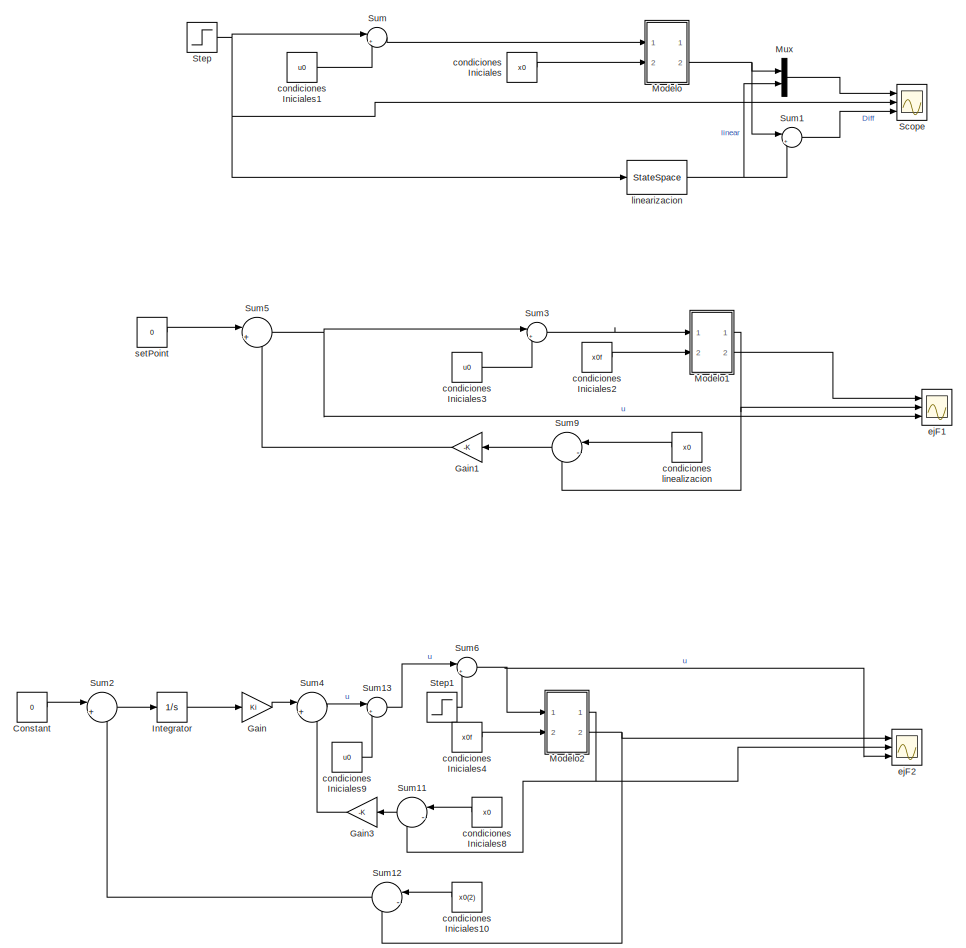
[diagram: root canvas - part 1/6, top center region]
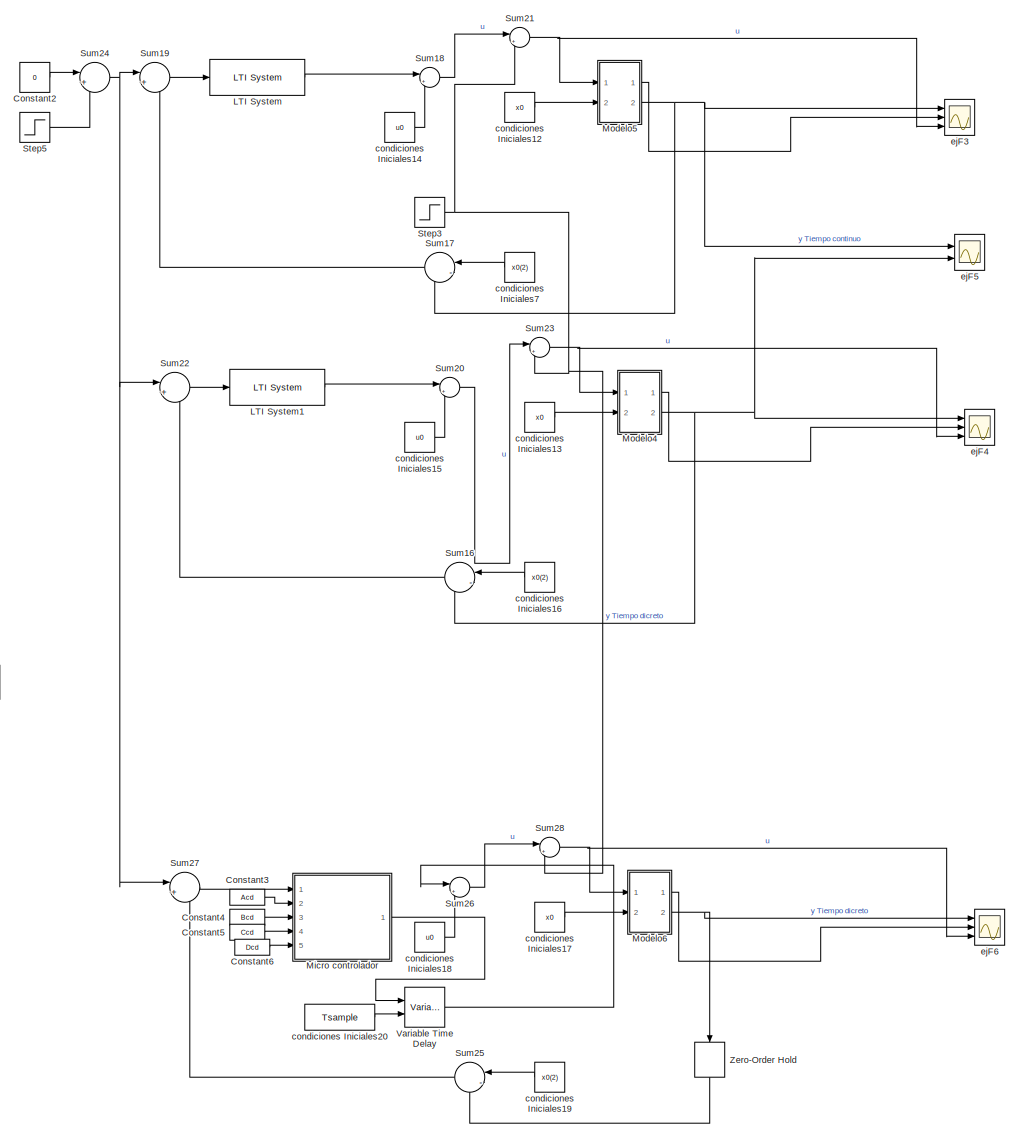
[diagram: root canvas - part 2/6, middle right region]
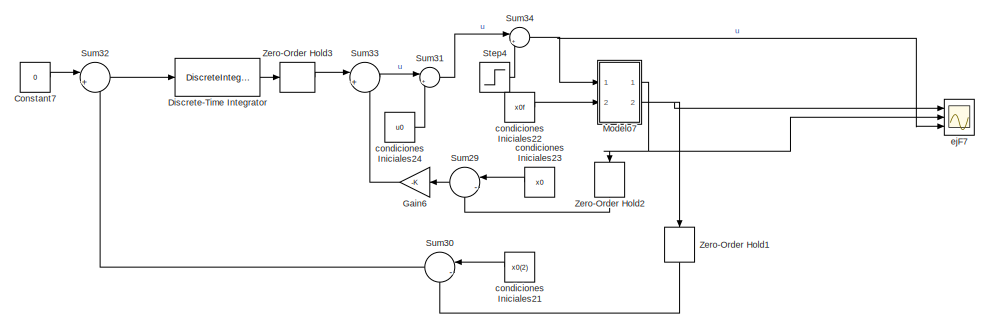
[diagram: root canvas - part 3/6, middle left region]
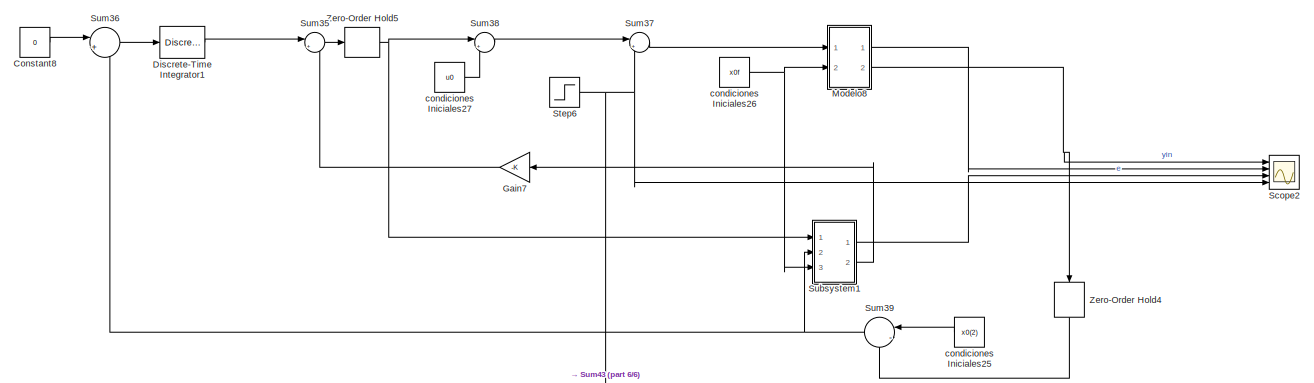
[diagram: root canvas - part 4/6, middle left region]
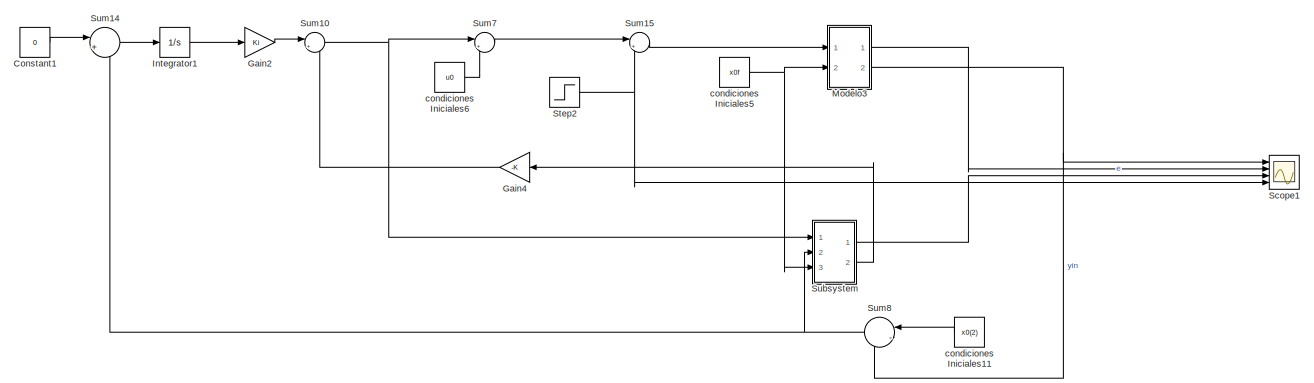
[diagram: root canvas - part 5/6, central region]
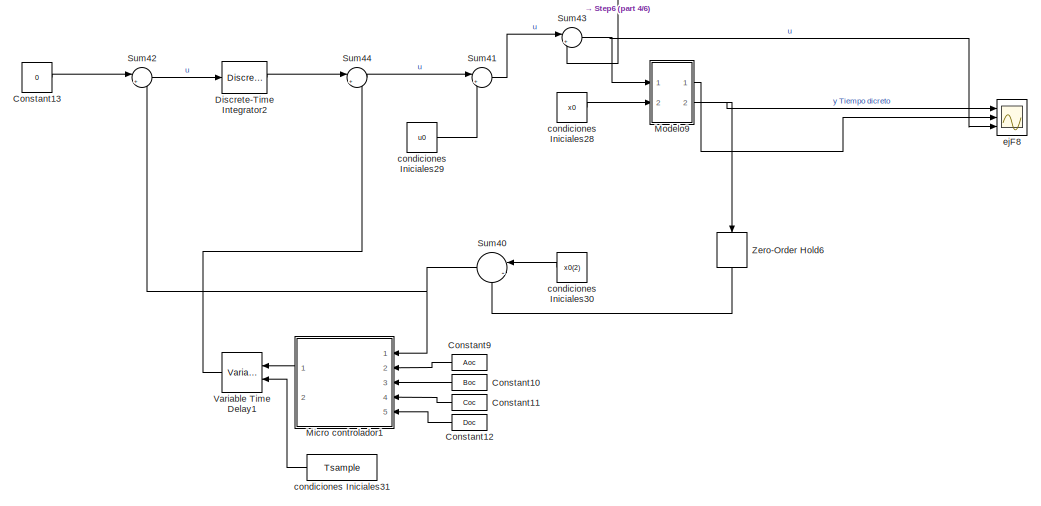
[diagram: root canvas - part 6/6, bottom left region]
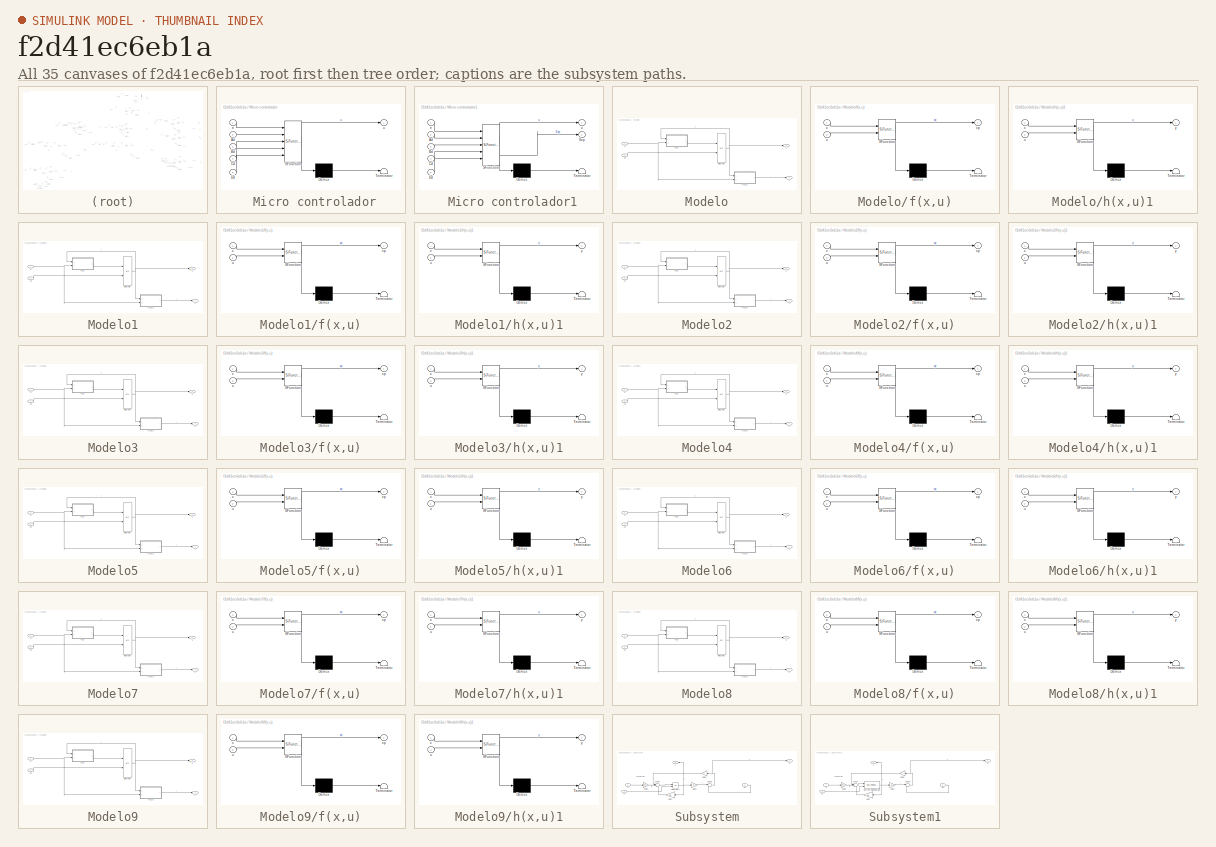
[diagram: thumbnail index - all 35 canvases of the model, root first then tree order]
MODEL slx_f2d41ec6eb1a
KIND model
CONFIG AbsTol = auto
CONFIG EnableMultiTasking = off
CONFIG FixedStep = 10e-6
CONFIG MaxStep = auto
CONFIG MinStep = auto
CONFIG RelTol = 1e-3
CONFIG SampleTimeConstraint = Unconstrained
CONFIG Solver = ode4
CONFIG SolverName = ode4
CONFIG StartTime = 0.0
CONFIG StopTime = 5
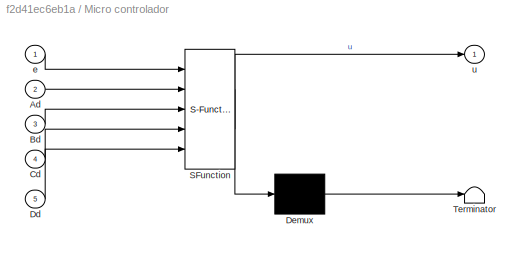
BLOCK [SubSystem]  Micro controlador
  Commented = on
  ErrorFcn = Stateflow.Translate.translate
  PermitHierarchicalResolution = ExplicitOnly
  Ports = [5, 1]
  RequestExecContextInheritance = off
  SFBlockType = MATLAB Function
  SystemSampleTime = Tsample
  TreatAsAtomicUnit = on
BLOCK [Demux]  Micro controlador/ Demux 
  Outputs = 1
  Ports = [1, 1]
BLOCK [S-Function]  Micro controlador/ SFunction 
  EnableBusSupport = on
  FunctionName = sf_sfun
  PortCounts = [5 2]
  Ports = [5, 2]
  SFcnIsStateOwnerBlock = off
  SFunctionDeploymentMode = off
  Tag = Stateflow S-Function 13
BLOCK [Terminator]  Micro controlador/ Terminator 
BLOCK [Inport]  Micro controlador/Ad
  Port = 2
BLOCK [Inport]  Micro controlador/Bd
  Port = 3
BLOCK [Inport]  Micro controlador/Cd
  Port = 4
BLOCK [Inport]  Micro controlador/Dd
  Port = 5
BLOCK [Inport]  Micro controlador/e
BLOCK [Outport]  Micro controlador/u
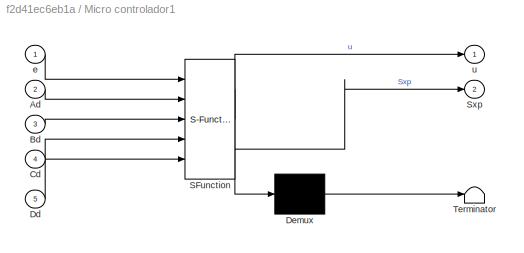
BLOCK [SubSystem]  Micro controlador1
  ErrorFcn = Stateflow.Translate.translate
  PermitHierarchicalResolution = ExplicitOnly
  Ports = [5, 2]
  RequestExecContextInheritance = off
  SFBlockType = MATLAB Function
  SystemSampleTime = Tsample
  TreatAsAtomicUnit = on
BLOCK [Demux]  Micro controlador1/ Demux 
  Outputs = 1
  Ports = [1, 1]
BLOCK [S-Function]  Micro controlador1/ SFunction 
  EnableBusSupport = on
  FunctionName = sf_sfun
  PortCounts = [5 3]
  Ports = [5, 3]
  SFcnIsStateOwnerBlock = off
  SFunctionDeploymentMode = off
  Tag = Stateflow S-Function 20
BLOCK [Terminator]  Micro controlador1/ Terminator 
BLOCK [Inport]  Micro controlador1/Ad
  Port = 2
BLOCK [Inport]  Micro controlador1/Bd
  Port = 3
BLOCK [Inport]  Micro controlador1/Cd
  Port = 4
BLOCK [Inport]  Micro controlador1/Dd
  Port = 5
BLOCK [Outport]  Micro controlador1/Sxp
  Port = 2
BLOCK [Inport]  Micro controlador1/e
BLOCK [Outport]  Micro controlador1/u
BLOCK [Constant] Constant
  Commented = on
  Value = 0
BLOCK [Constant] Constant1
  Commented = on
  Value = 0
BLOCK [Constant] Constant10
  Value = Boc
BLOCK [Constant] Constant11
  Value = Coc
BLOCK [Constant] Constant12
  Value = Doc
BLOCK [Constant] Constant13
  Value = 0
BLOCK [Constant] Constant2
  Commented = on
  Value = 0
BLOCK [Constant] Constant3
  Commented = on
  Value = Acd
BLOCK [Constant] Constant4
  Commented = on
  Value = Bcd
BLOCK [Constant] Constant5
  Commented = on
  Value = Ccd
BLOCK [Constant] Constant6
  Commented = on
  Value = Dcd
BLOCK [Constant] Constant7
  Commented = on
  Value = 0
BLOCK [Constant] Constant8
  Value = 0
BLOCK [Constant] Constant9
  Value = Aoc
BLOCK [DiscreteIntegrator] Discrete-Time Integrator
  Commented = on
  ICPrevOutput = DiscIntNeverNeededParam
  ICPrevScaledInput = DiscIntNeverNeededParam
  InitialConditionSetting = Auto
  IntegratorMethod = Integration: Trapezoidal
  Ports = [1, 1]
  SampleTime = Tsample
  gainval = Ki
BLOCK [DiscreteIntegrator] Discrete-Time Integrator1
  ICPrevOutput = DiscIntNeverNeededParam
  ICPrevScaledInput = DiscIntNeverNeededParam
  InitialConditionSetting = Auto
  IntegratorMethod = Integration: Trapezoidal
  Ports = [1, 1]
  SampleTime = Tsample
  gainval = Ki
BLOCK [DiscreteIntegrator] Discrete-Time Integrator2
  ICPrevOutput = DiscIntNeverNeededParam
  ICPrevScaledInput = DiscIntNeverNeededParam
  InitialConditionSetting = Auto
  IntegratorMethod = Integration: Trapezoidal
  Ports = [1, 1]
  SampleTime = Tsample
  gainval = Ki
BLOCK [Gain] Gain
  Commented = on
  Gain = Ki
BLOCK [Gain] Gain1
  Commented = on
  Gain = -K
  Multiplication = Matrix(K*u)
BLOCK [Gain] Gain2
  Commented = on
  Gain = Ki
  Multiplication = Matrix(K*u)
BLOCK [Gain] Gain3
  Commented = on
  Gain = -K
  Multiplication = Matrix(K*u)
BLOCK [Gain] Gain4
  Commented = on
  Gain = -K
  Multiplication = Matrix(K*u)
BLOCK [Gain] Gain6
  Commented = on
  Gain = -K
  Multiplication = Matrix(K*u)
BLOCK [Gain] Gain7
  Gain = -K
  Multiplication = Matrix(K*u)
BLOCK [Integrator] Integrator
  Commented = on
  Ports = [1, 1]
BLOCK [Integrator] Integrator1
  Commented = on
  Ports = [1, 1]
BLOCK [Reference] LTI System  REF=cstblocks/LTI System
  Commented = on
  Ports = [1, 1]
  SourceBlock = cstblocks/LTI System
  SourceProductBaseCode = CT
  SourceType = LTI Block
BLOCK [Reference] LTI System1  REF=cstblocks/LTI System
  Commented = on
  Ports = [1, 1]
  SourceBlock = cstblocks/LTI System
  SourceProductBaseCode = CT
  SourceType = LTI Block
BLOCK [SubSystem] Modelo
  Commented = on
  Ports = [2, 2]
  RequestExecContextInheritance = off
BLOCK [Integrator] Modelo/Integrator
  InitialConditionSource = external
  Ports = [2, 1]
BLOCK [SubSystem] Modelo/f(x,u)
  ErrorFcn = Stateflow.Translate.translate
  PermitHierarchicalResolution = ExplicitOnly
  Ports = [2, 1]
  RequestExecContextInheritance = off
  SFBlockType = MATLAB Function
  TreatAsAtomicUnit = on
BLOCK [Demux] Modelo/f(x,u)/ Demux 
  Outputs = 1
  Ports = [1, 1]
BLOCK [S-Function] Modelo/f(x,u)/ SFunction 
  EnableBusSupport = on
  FunctionName = sf_sfun
  PortCounts = [2 2]
  Ports = [2, 2]
  SFcnIsStateOwnerBlock = off
  SFunctionDeploymentMode = off
  Tag = Stateflow S-Function 2
BLOCK [Terminator] Modelo/f(x,u)/ Terminator 
BLOCK [Inport] Modelo/f(x,u)/u
  Port = 2
BLOCK [Inport] Modelo/f(x,u)/x
BLOCK [Outport] Modelo/f(x,u)/xp
  VectorParamsAs1DForOutWhenUnconnected = off
BLOCK [SubSystem] Modelo/h(x,u)1
  ErrorFcn = Stateflow.Translate.translate
  PermitHierarchicalResolution = ExplicitOnly
  Ports = [2, 1]
  RequestExecContextInheritance = off
  SFBlockType = MATLAB Function
  TreatAsAtomicUnit = on
BLOCK [Demux] Modelo/h(x,u)1/ Demux 
  Outputs = 1
  Ports = [1, 1]
BLOCK [S-Function] Modelo/h(x,u)1/ SFunction 
  EnableBusSupport = on
  FunctionName = sf_sfun
  PortCounts = [2 2]
  Ports = [2, 2]
  SFcnIsStateOwnerBlock = off
  SFunctionDeploymentMode = off
  Tag = Stateflow S-Function 1
BLOCK [Terminator] Modelo/h(x,u)1/ Terminator 
BLOCK [Inport] Modelo/h(x,u)1/u
  Port = 2
BLOCK [Inport] Modelo/h(x,u)1/x
BLOCK [Outport] Modelo/h(x,u)1/y
  VectorParamsAs1DForOutWhenUnconnected = off
BLOCK [Inport] Modelo/u
BLOCK [Outport] Modelo/x
BLOCK [Inport] Modelo/x0
  Port = 2
BLOCK [Outport] Modelo/y
  Port = 2
BLOCK [SubSystem] Modelo1
  Commented = on
  Ports = [2, 2]
  RequestExecContextInheritance = off
BLOCK [Integrator] Modelo1/Integrator
  InitialConditionSource = external
  Ports = [2, 1]
BLOCK [SubSystem] Modelo1/f(x,u)
  ErrorFcn = Stateflow.Translate.translate
  PermitHierarchicalResolution = ExplicitOnly
  Ports = [2, 1]
  RequestExecContextInheritance = off
  SFBlockType = MATLAB Function
  TreatAsAtomicUnit = on
BLOCK [Demux] Modelo1/f(x,u)/ Demux 
  Outputs = 1
  Ports = [1, 1]
BLOCK [S-Function] Modelo1/f(x,u)/ SFunction 
  EnableBusSupport = on
  FunctionName = sf_sfun
  PortCounts = [2 2]
  Ports = [2, 2]
  SFcnIsStateOwnerBlock = off
  SFunctionDeploymentMode = off
  Tag = Stateflow S-Function 3
BLOCK [Terminator] Modelo1/f(x,u)/ Terminator 
BLOCK [Inport] Modelo1/f(x,u)/u
  Port = 2
BLOCK [Inport] Modelo1/f(x,u)/x
BLOCK [Outport] Modelo1/f(x,u)/xp
  VectorParamsAs1DForOutWhenUnconnected = off
BLOCK [SubSystem] Modelo1/h(x,u)1
  ErrorFcn = Stateflow.Translate.translate
  PermitHierarchicalResolution = ExplicitOnly
  Ports = [2, 1]
  RequestExecContextInheritance = off
  SFBlockType = MATLAB Function
  TreatAsAtomicUnit = on
BLOCK [Demux] Modelo1/h(x,u)1/ Demux 
  Outputs = 1
  Ports = [1, 1]
BLOCK [S-Function] Modelo1/h(x,u)1/ SFunction 
  EnableBusSupport = on
  FunctionName = sf_sfun
  PortCounts = [2 2]
  Ports = [2, 2]
  SFcnIsStateOwnerBlock = off
  SFunctionDeploymentMode = off
  Tag = Stateflow S-Function 4
BLOCK [Terminator] Modelo1/h(x,u)1/ Terminator 
BLOCK [Inport] Modelo1/h(x,u)1/u
  Port = 2
BLOCK [Inport] Modelo1/h(x,u)1/x
BLOCK [Outport] Modelo1/h(x,u)1/y
  VectorParamsAs1DForOutWhenUnconnected = off
BLOCK [Inport] Modelo1/u
BLOCK [Outport] Modelo1/x
BLOCK [Inport] Modelo1/x0
  Port = 2
BLOCK [Outport] Modelo1/y
  Port = 2
BLOCK [SubSystem] Modelo2
  Commented = on
  Ports = [2, 2]
  RequestExecContextInheritance = off
BLOCK [Integrator] Modelo2/Integrator
  InitialConditionSource = external
  Ports = [2, 1]
BLOCK [SubSystem] Modelo2/f(x,u)
  ErrorFcn = Stateflow.Translate.translate
  PermitHierarchicalResolution = ExplicitOnly
  Ports = [2, 1]
  RequestExecContextInheritance = off
  SFBlockType = MATLAB Function
  TreatAsAtomicUnit = on
BLOCK [Demux] Modelo2/f(x,u)/ Demux 
  Outputs = 1
  Ports = [1, 1]
BLOCK [S-Function] Modelo2/f(x,u)/ SFunction 
  EnableBusSupport = on
  FunctionName = sf_sfun
  PortCounts = [2 2]
  Ports = [2, 2]
  SFcnIsStateOwnerBlock = off
  SFunctionDeploymentMode = off
  Tag = Stateflow S-Function 5
BLOCK [Terminator] Modelo2/f(x,u)/ Terminator 
BLOCK [Inport] Modelo2/f(x,u)/u
  Port = 2
BLOCK [Inport] Modelo2/f(x,u)/x
BLOCK [Outport] Modelo2/f(x,u)/xp
  VectorParamsAs1DForOutWhenUnconnected = off
BLOCK [SubSystem] Modelo2/h(x,u)1
  ErrorFcn = Stateflow.Translate.translate
  PermitHierarchicalResolution = ExplicitOnly
  Ports = [2, 1]
  RequestExecContextInheritance = off
  SFBlockType = MATLAB Function
  TreatAsAtomicUnit = on
BLOCK [Demux] Modelo2/h(x,u)1/ Demux 
  Outputs = 1
  Ports = [1, 1]
BLOCK [S-Function] Modelo2/h(x,u)1/ SFunction 
  EnableBusSupport = on
  FunctionName = sf_sfun
  PortCounts = [2 2]
  Ports = [2, 2]
  SFcnIsStateOwnerBlock = off
  SFunctionDeploymentMode = off
  Tag = Stateflow S-Function 6
BLOCK [Terminator] Modelo2/h(x,u)1/ Terminator 
BLOCK [Inport] Modelo2/h(x,u)1/u
  Port = 2
BLOCK [Inport] Modelo2/h(x,u)1/x
BLOCK [Outport] Modelo2/h(x,u)1/y
  VectorParamsAs1DForOutWhenUnconnected = off
BLOCK [Inport] Modelo2/u
BLOCK [Outport] Modelo2/x
BLOCK [Inport] Modelo2/x0
  Port = 2
BLOCK [Outport] Modelo2/y
  Port = 2
BLOCK [SubSystem] Modelo3
  Commented = on
  Ports = [2, 2]
  RequestExecContextInheritance = off
BLOCK [Integrator] Modelo3/Integrator
  InitialConditionSource = external
  Ports = [2, 1]
BLOCK [SubSystem] Modelo3/f(x,u)
  ErrorFcn = Stateflow.Translate.translate
  PermitHierarchicalResolution = ExplicitOnly
  Ports = [2, 1]
  RequestExecContextInheritance = off
  SFBlockType = MATLAB Function
  TreatAsAtomicUnit = on
BLOCK [Demux] Modelo3/f(x,u)/ Demux 
  Outputs = 1
  Ports = [1, 1]
BLOCK [S-Function] Modelo3/f(x,u)/ SFunction 
  EnableBusSupport = on
  FunctionName = sf_sfun
  PortCounts = [2 2]
  Ports = [2, 2]
  SFcnIsStateOwnerBlock = off
  SFunctionDeploymentMode = off
  Tag = Stateflow S-Function 7
BLOCK [Terminator] Modelo3/f(x,u)/ Terminator 
BLOCK [Inport] Modelo3/f(x,u)/u
  Port = 2
BLOCK [Inport] Modelo3/f(x,u)/x
BLOCK [Outport] Modelo3/f(x,u)/xp
  VectorParamsAs1DForOutWhenUnconnected = off
BLOCK [SubSystem] Modelo3/h(x,u)1
  ErrorFcn = Stateflow.Translate.translate
  PermitHierarchicalResolution = ExplicitOnly
  Ports = [2, 1]
  RequestExecContextInheritance = off
  SFBlockType = MATLAB Function
  TreatAsAtomicUnit = on
BLOCK [Demux] Modelo3/h(x,u)1/ Demux 
  Outputs = 1
  Ports = [1, 1]
BLOCK [S-Function] Modelo3/h(x,u)1/ SFunction 
  EnableBusSupport = on
  FunctionName = sf_sfun
  PortCounts = [2 2]
  Ports = [2, 2]
  SFcnIsStateOwnerBlock = off
  SFunctionDeploymentMode = off
  Tag = Stateflow S-Function 8
BLOCK [Terminator] Modelo3/h(x,u)1/ Terminator 
BLOCK [Inport] Modelo3/h(x,u)1/u
  Port = 2
BLOCK [Inport] Modelo3/h(x,u)1/x
BLOCK [Outport] Modelo3/h(x,u)1/y
  VectorParamsAs1DForOutWhenUnconnected = off
BLOCK [Inport] Modelo3/u
BLOCK [Outport] Modelo3/x
BLOCK [Inport] Modelo3/x0
  Port = 2
BLOCK [Outport] Modelo3/y
  Port = 2
BLOCK [SubSystem] Modelo4
  Commented = on
  Ports = [2, 2]
  RequestExecContextInheritance = off
BLOCK [Integrator] Modelo4/Integrator
  InitialConditionSource = external
  Ports = [2, 1]
BLOCK [SubSystem] Modelo4/f(x,u)
  ErrorFcn = Stateflow.Translate.translate
  PermitHierarchicalResolution = ExplicitOnly
  Ports = [2, 1]
  RequestExecContextInheritance = off
  SFBlockType = MATLAB Function
  TreatAsAtomicUnit = on
BLOCK [Demux] Modelo4/f(x,u)/ Demux 
  Outputs = 1
  Ports = [1, 1]
BLOCK [S-Function] Modelo4/f(x,u)/ SFunction 
  EnableBusSupport = on
  FunctionName = sf_sfun
  PortCounts = [2 2]
  Ports = [2, 2]
  SFcnIsStateOwnerBlock = off
  SFunctionDeploymentMode = off
  Tag = Stateflow S-Function 9
BLOCK [Terminator] Modelo4/f(x,u)/ Terminator 
BLOCK [Inport] Modelo4/f(x,u)/u
  Port = 2
BLOCK [Inport] Modelo4/f(x,u)/x
BLOCK [Outport] Modelo4/f(x,u)/xp
  VectorParamsAs1DForOutWhenUnconnected = off
BLOCK [SubSystem] Modelo4/h(x,u)1
  ErrorFcn = Stateflow.Translate.translate
  PermitHierarchicalResolution = ExplicitOnly
  Ports = [2, 1]
  RequestExecContextInheritance = off
  SFBlockType = MATLAB Function
  TreatAsAtomicUnit = on
BLOCK [Demux] Modelo4/h(x,u)1/ Demux 
  Outputs = 1
  Ports = [1, 1]
BLOCK [S-Function] Modelo4/h(x,u)1/ SFunction 
  EnableBusSupport = on
  FunctionName = sf_sfun
  PortCounts = [2 2]
  Ports = [2, 2]
  SFcnIsStateOwnerBlock = off
  SFunctionDeploymentMode = off
  Tag = Stateflow S-Function 10
BLOCK [Terminator] Modelo4/h(x,u)1/ Terminator 
BLOCK [Inport] Modelo4/h(x,u)1/u
  Port = 2
BLOCK [Inport] Modelo4/h(x,u)1/x
BLOCK [Outport] Modelo4/h(x,u)1/y
  VectorParamsAs1DForOutWhenUnconnected = off
BLOCK [Inport] Modelo4/u
BLOCK [Outport] Modelo4/x
BLOCK [Inport] Modelo4/x0
  Port = 2
BLOCK [Outport] Modelo4/y
  Port = 2
BLOCK [SubSystem] Modelo5
  Commented = on
  Ports = [2, 2]
  RequestExecContextInheritance = off
BLOCK [Integrator] Modelo5/Integrator
  InitialConditionSource = external
  Ports = [2, 1]
BLOCK [SubSystem] Modelo5/f(x,u)
  ErrorFcn = Stateflow.Translate.translate
  PermitHierarchicalResolution = ExplicitOnly
  Ports = [2, 1]
  RequestExecContextInheritance = off
  SFBlockType = MATLAB Function
  TreatAsAtomicUnit = on
BLOCK [Demux] Modelo5/f(x,u)/ Demux 
  Outputs = 1
  Ports = [1, 1]
BLOCK [S-Function] Modelo5/f(x,u)/ SFunction 
  EnableBusSupport = on
  FunctionName = sf_sfun
  PortCounts = [2 2]
  Ports = [2, 2]
  SFcnIsStateOwnerBlock = off
  SFunctionDeploymentMode = off
  Tag = Stateflow S-Function 11
BLOCK [Terminator] Modelo5/f(x,u)/ Terminator 
BLOCK [Inport] Modelo5/f(x,u)/u
  Port = 2
BLOCK [Inport] Modelo5/f(x,u)/x
BLOCK [Outport] Modelo5/f(x,u)/xp
  VectorParamsAs1DForOutWhenUnconnected = off
BLOCK [SubSystem] Modelo5/h(x,u)1
  ErrorFcn = Stateflow.Translate.translate
  PermitHierarchicalResolution = ExplicitOnly
  Ports = [2, 1]
  RequestExecContextInheritance = off
  SFBlockType = MATLAB Function
  TreatAsAtomicUnit = on
BLOCK [Demux] Modelo5/h(x,u)1/ Demux 
  Outputs = 1
  Ports = [1, 1]
BLOCK [S-Function] Modelo5/h(x,u)1/ SFunction 
  EnableBusSupport = on
  FunctionName = sf_sfun
  PortCounts = [2 2]
  Ports = [2, 2]
  SFcnIsStateOwnerBlock = off
  SFunctionDeploymentMode = off
  Tag = Stateflow S-Function 12
BLOCK [Terminator] Modelo5/h(x,u)1/ Terminator 
BLOCK [Inport] Modelo5/h(x,u)1/u
  Port = 2
BLOCK [Inport] Modelo5/h(x,u)1/x
BLOCK [Outport] Modelo5/h(x,u)1/y
  VectorParamsAs1DForOutWhenUnconnected = off
BLOCK [Inport] Modelo5/u
BLOCK [Outport] Modelo5/x
BLOCK [Inport] Modelo5/x0
  Port = 2
BLOCK [Outport] Modelo5/y
  Port = 2
BLOCK [SubSystem] Modelo6
  Commented = on
  Ports = [2, 2]
  RequestExecContextInheritance = off
BLOCK [Integrator] Modelo6/Integrator
  InitialConditionSource = external
  Ports = [2, 1]
BLOCK [SubSystem] Modelo6/f(x,u)
  ErrorFcn = Stateflow.Translate.translate
  PermitHierarchicalResolution = ExplicitOnly
  Ports = [2, 1]
  RequestExecContextInheritance = off
  SFBlockType = MATLAB Function
  TreatAsAtomicUnit = on
BLOCK [Demux] Modelo6/f(x,u)/ Demux 
  Outputs = 1
  Ports = [1, 1]
BLOCK [S-Function] Modelo6/f(x,u)/ SFunction 
  EnableBusSupport = on
  FunctionName = sf_sfun
  PortCounts = [2 2]
  Ports = [2, 2]
  SFcnIsStateOwnerBlock = off
  SFunctionDeploymentMode = off
  Tag = Stateflow S-Function 14
BLOCK [Terminator] Modelo6/f(x,u)/ Terminator 
BLOCK [Inport] Modelo6/f(x,u)/u
  Port = 2
BLOCK [Inport] Modelo6/f(x,u)/x
BLOCK [Outport] Modelo6/f(x,u)/xp
  VectorParamsAs1DForOutWhenUnconnected = off
BLOCK [SubSystem] Modelo6/h(x,u)1
  ErrorFcn = Stateflow.Translate.translate
  PermitHierarchicalResolution = ExplicitOnly
  Ports = [2, 1]
  RequestExecContextInheritance = off
  SFBlockType = MATLAB Function
  TreatAsAtomicUnit = on
BLOCK [Demux] Modelo6/h(x,u)1/ Demux 
  Outputs = 1
  Ports = [1, 1]
BLOCK [S-Function] Modelo6/h(x,u)1/ SFunction 
  EnableBusSupport = on
  FunctionName = sf_sfun
  PortCounts = [2 2]
  Ports = [2, 2]
  SFcnIsStateOwnerBlock = off
  SFunctionDeploymentMode = off
  Tag = Stateflow S-Function 15
BLOCK [Terminator] Modelo6/h(x,u)1/ Terminator 
BLOCK [Inport] Modelo6/h(x,u)1/u
  Port = 2
BLOCK [Inport] Modelo6/h(x,u)1/x
BLOCK [Outport] Modelo6/h(x,u)1/y
  VectorParamsAs1DForOutWhenUnconnected = off
BLOCK [Inport] Modelo6/u
BLOCK [Outport] Modelo6/x
BLOCK [Inport] Modelo6/x0
  Port = 2
BLOCK [Outport] Modelo6/y
  Port = 2
BLOCK [SubSystem] Modelo7
  Commented = on
  Ports = [2, 2]
  RequestExecContextInheritance = off
BLOCK [Integrator] Modelo7/Integrator
  InitialConditionSource = external
  Ports = [2, 1]
BLOCK [SubSystem] Modelo7/f(x,u)
  ErrorFcn = Stateflow.Translate.translate
  PermitHierarchicalResolution = ExplicitOnly
  Ports = [2, 1]
  RequestExecContextInheritance = off
  SFBlockType = MATLAB Function
  TreatAsAtomicUnit = on
BLOCK [Demux] Modelo7/f(x,u)/ Demux 
  Outputs = 1
  Ports = [1, 1]
BLOCK [S-Function] Modelo7/f(x,u)/ SFunction 
  EnableBusSupport = on
  FunctionName = sf_sfun
  PortCounts = [2 2]
  Ports = [2, 2]
  SFcnIsStateOwnerBlock = off
  SFunctionDeploymentMode = off
  Tag = Stateflow S-Function 16
BLOCK [Terminator] Modelo7/f(x,u)/ Terminator 
BLOCK [Inport] Modelo7/f(x,u)/u
  Port = 2
BLOCK [Inport] Modelo7/f(x,u)/x
BLOCK [Outport] Modelo7/f(x,u)/xp
  VectorParamsAs1DForOutWhenUnconnected = off
BLOCK [SubSystem] Modelo7/h(x,u)1
  ErrorFcn = Stateflow.Translate.translate
  PermitHierarchicalResolution = ExplicitOnly
  Ports = [2, 1]
  RequestExecContextInheritance = off
  SFBlockType = MATLAB Function
  TreatAsAtomicUnit = on
BLOCK [Demux] Modelo7/h(x,u)1/ Demux 
  Outputs = 1
  Ports = [1, 1]
BLOCK [S-Function] Modelo7/h(x,u)1/ SFunction 
  EnableBusSupport = on
  FunctionName = sf_sfun
  PortCounts = [2 2]
  Ports = [2, 2]
  SFcnIsStateOwnerBlock = off
  SFunctionDeploymentMode = off
  Tag = Stateflow S-Function 17
BLOCK [Terminator] Modelo7/h(x,u)1/ Terminator 
BLOCK [Inport] Modelo7/h(x,u)1/u
  Port = 2
BLOCK [Inport] Modelo7/h(x,u)1/x
BLOCK [Outport] Modelo7/h(x,u)1/y
  VectorParamsAs1DForOutWhenUnconnected = off
BLOCK [Inport] Modelo7/u
BLOCK [Outport] Modelo7/x
BLOCK [Inport] Modelo7/x0
  Port = 2
BLOCK [Outport] Modelo7/y
  Port = 2
BLOCK [SubSystem] Modelo8
  Ports = [2, 2]
  RequestExecContextInheritance = off
BLOCK [Integrator] Modelo8/Integrator
  InitialConditionSource = external
  Ports = [2, 1]
BLOCK [SubSystem] Modelo8/f(x,u)
  ErrorFcn = Stateflow.Translate.translate
  PermitHierarchicalResolution = ExplicitOnly
  Ports = [2, 1]
  RequestExecContextInheritance = off
  SFBlockType = MATLAB Function
  TreatAsAtomicUnit = on
BLOCK [Demux] Modelo8/f(x,u)/ Demux 
  Outputs = 1
  Ports = [1, 1]
BLOCK [S-Function] Modelo8/f(x,u)/ SFunction 
  EnableBusSupport = on
  FunctionName = sf_sfun
  PortCounts = [2 2]
  Ports = [2, 2]
  SFcnIsStateOwnerBlock = off
  SFunctionDeploymentMode = off
  Tag = Stateflow S-Function 18
BLOCK [Terminator] Modelo8/f(x,u)/ Terminator 
BLOCK [Inport] Modelo8/f(x,u)/u
  Port = 2
BLOCK [Inport] Modelo8/f(x,u)/x
BLOCK [Outport] Modelo8/f(x,u)/xp
  VectorParamsAs1DForOutWhenUnconnected = off
BLOCK [SubSystem] Modelo8/h(x,u)1
  ErrorFcn = Stateflow.Translate.translate
  PermitHierarchicalResolution = ExplicitOnly
  Ports = [2, 1]
  RequestExecContextInheritance = off
  SFBlockType = MATLAB Function
  TreatAsAtomicUnit = on
BLOCK [Demux] Modelo8/h(x,u)1/ Demux 
  Outputs = 1
  Ports = [1, 1]
BLOCK [S-Function] Modelo8/h(x,u)1/ SFunction 
  EnableBusSupport = on
  FunctionName = sf_sfun
  PortCounts = [2 2]
  Ports = [2, 2]
  SFcnIsStateOwnerBlock = off
  SFunctionDeploymentMode = off
  Tag = Stateflow S-Function 19
BLOCK [Terminator] Modelo8/h(x,u)1/ Terminator 
BLOCK [Inport] Modelo8/h(x,u)1/u
  Port = 2
BLOCK [Inport] Modelo8/h(x,u)1/x
BLOCK [Outport] Modelo8/h(x,u)1/y
  VectorParamsAs1DForOutWhenUnconnected = off
BLOCK [Inport] Modelo8/u
BLOCK [Outport] Modelo8/x
BLOCK [Inport] Modelo8/x0
  Port = 2
BLOCK [Outport] Modelo8/y
  Port = 2
BLOCK [SubSystem] Modelo9
  Ports = [2, 2]
  RequestExecContextInheritance = off
BLOCK [Integrator] Modelo9/Integrator
  InitialConditionSource = external
  Ports = [2, 1]
BLOCK [SubSystem] Modelo9/f(x,u)
  ErrorFcn = Stateflow.Translate.translate
  PermitHierarchicalResolution = ExplicitOnly
  Ports = [2, 1]
  RequestExecContextInheritance = off
  SFBlockType = MATLAB Function
  TreatAsAtomicUnit = on
BLOCK [Demux] Modelo9/f(x,u)/ Demux 
  Outputs = 1
  Ports = [1, 1]
BLOCK [S-Function] Modelo9/f(x,u)/ SFunction 
  EnableBusSupport = on
  FunctionName = sf_sfun
  PortCounts = [2 2]
  Ports = [2, 2]
  SFcnIsStateOwnerBlock = off
  SFunctionDeploymentMode = off
  Tag = Stateflow S-Function 21
BLOCK [Terminator] Modelo9/f(x,u)/ Terminator 
BLOCK [Inport] Modelo9/f(x,u)/u
  Port = 2
BLOCK [Inport] Modelo9/f(x,u)/x
BLOCK [Outport] Modelo9/f(x,u)/xp
  VectorParamsAs1DForOutWhenUnconnected = off
BLOCK [SubSystem] Modelo9/h(x,u)1
  ErrorFcn = Stateflow.Translate.translate
  PermitHierarchicalResolution = ExplicitOnly
  Ports = [2, 1]
  RequestExecContextInheritance = off
  SFBlockType = MATLAB Function
  TreatAsAtomicUnit = on
BLOCK [Demux] Modelo9/h(x,u)1/ Demux 
  Outputs = 1
  Ports = [1, 1]
BLOCK [S-Function] Modelo9/h(x,u)1/ SFunction 
  EnableBusSupport = on
  FunctionName = sf_sfun
  PortCounts = [2 2]
  Ports = [2, 2]
  SFcnIsStateOwnerBlock = off
  SFunctionDeploymentMode = off
  Tag = Stateflow S-Function 22
BLOCK [Terminator] Modelo9/h(x,u)1/ Terminator 
BLOCK [Inport] Modelo9/h(x,u)1/u
  Port = 2
BLOCK [Inport] Modelo9/h(x,u)1/x
BLOCK [Outport] Modelo9/h(x,u)1/y
  VectorParamsAs1DForOutWhenUnconnected = off
BLOCK [Inport] Modelo9/u
BLOCK [Outport] Modelo9/x
BLOCK [Inport] Modelo9/x0
  Port = 2
BLOCK [Outport] Modelo9/y
  Port = 2
BLOCK [Mux] Mux
  Commented = on
  DisplayOption = bar
  Inputs = 2
  Ports = [2, 1]
BLOCK [Scope] Scope
  Commented = on
  Floating = off
  NumInputPorts = 3
  Ports = [3]
  ScopeSpecificationString = Simulink.scopes.TimeScopeBlockCfg('CurrentConfiguration', extmgr.ConfigurationSet(extmgr.Configuration('Core','General UI',true,'FigureColor',[1 1 1]),extmgr.Configuration('Core','Source UI',true),extmgr.Configuration('Sources','WiredSimulink',true),extmgr.Configuration('Visuals','Time Domain',true,'SerializedDisplays',{struct('MinYLimReal','-0.000005','MaxYLimReal','0.000045','YLabelReal','','Min...<+3280ch>
BLOCK [Scope] Scope1
  Commented = on
  Floating = off
  NumInputPorts = 4
  Ports = [4]
  ScopeSpecificationString = Simulink.scopes.TimeScopeBlockCfg('CurrentConfiguration', extmgr.ConfigurationSet(extmgr.Configuration('Core','General UI',true,'FigureColor',[1 1 1]),extmgr.Configuration('Core','Source UI',true),extmgr.Configuration('Sources','WiredSimulink',true,'DataLoggingVariableName','ScopeData1'),extmgr.Configuration('Visuals','Time Domain',true,'SerializedDisplays',{struct('MinYLimReal','-0.42482','MaxYLi...<+4296ch>
BLOCK [Scope] Scope2
  Floating = off
  NumInputPorts = 4
  Ports = [4]
  ScopeSpecificationString = Simulink.scopes.TimeScopeBlockCfg('CurrentConfiguration', extmgr.ConfigurationSet(extmgr.Configuration('Core','General UI',true,'FigureColor',[1 1 1]),extmgr.Configuration('Core','Source UI',true),extmgr.Configuration('Sources','WiredSimulink',true,'DataLoggingVariableName','ScopeData2'),extmgr.Configuration('Visuals','Time Domain',true,'SerializedDisplays',{struct('MinYLimReal','-0.48436','MaxYLi...<+4297ch>
BLOCK [Step] Step
  After = 0.1
  Commented = on
  SampleTime = 0
  Time = 50e-3
BLOCK [Step] Step1
  After = 10
  Commented = on
  SampleTime = 0
  Time = 2.5
BLOCK [Step] Step2
  After = 2
  Commented = on
  SampleTime = 0
  Time = 2.5
BLOCK [Step] Step3
  After = 100e-3
  Commented = on
  SampleTime = 0
  Time = 2.5
BLOCK [Step] Step4
  After = 10
  Commented = on
  SampleTime = 0
  Time = 2.5
BLOCK [Step] Step5
  After = 1e-3
  Commented = on
  SampleTime = 0
BLOCK [Step] Step6
  After = 1e-3
  SampleTime = 0
  Time = 2.5
BLOCK [SubSystem] Subsystem
  Commented = on
  Ports = [3, 2]
  RequestExecContextInheritance = off
BLOCK [Gain] Subsystem/Gain5
  Gain = B0
  Multiplication = Matrix(K*u)
BLOCK [Gain] Subsystem/Gain6
  Gain = C0
  Multiplication = Matrix(K*u)
BLOCK [Gain] Subsystem/Gain7
  Gain = A0
  Multiplication = Matrix(K*u)
BLOCK [Gain] Subsystem/Gain8
  Gain = L
  Multiplication = Matrix(K*u)
BLOCK [Integrator] Subsystem/Integrator1
  InitialConditionSource = external
  Ports = [2, 1]
BLOCK [Sum] Subsystem/Sum14
  Inputs = |+++
  Ports = [3, 1]
BLOCK [Sum] Subsystem/Sum15
  Inputs = |-+
  Ports = [2, 1]
BLOCK [Outport] Subsystem/e
BLOCK [Inport] Subsystem/u
BLOCK [Outport] Subsystem/x
  Port = 2
BLOCK [Inport] Subsystem/x0
  Port = 3
BLOCK [Inport] Subsystem/yin
  Port = 2
BLOCK [SubSystem] Subsystem1
  Ports = [3, 2]
  RequestExecContextInheritance = off
BLOCK [DiscreteIntegrator] Subsystem1/Discrete-Time Integrator
  ICPrevOutput = DiscIntNeverNeededParam
  ICPrevScaledInput = DiscIntNeverNeededParam
  InitialConditionSetting = Auto
  InitialConditionSource = external
  IntegratorMethod = Integration: Trapezoidal
  Ports = [2, 1]
  SampleTime = Tsample
BLOCK [Gain] Subsystem1/Gain5
  Gain = B0
  Multiplication = Matrix(K*u)
BLOCK [Gain] Subsystem1/Gain6
  Gain = C0
  Multiplication = Matrix(K*u)
BLOCK [Gain] Subsystem1/Gain7
  Gain = A0
  Multiplication = Matrix(K*u)
BLOCK [Gain] Subsystem1/Gain8
  Gain = L
  Multiplication = Matrix(K*u)
BLOCK [Sum] Subsystem1/Sum14
  Inputs = |+++
  Ports = [3, 1]
BLOCK [Sum] Subsystem1/Sum15
  Inputs = |-+
  Ports = [2, 1]
BLOCK [Outport] Subsystem1/e
BLOCK [Inport] Subsystem1/u
BLOCK [Outport] Subsystem1/x
  Port = 2
BLOCK [Inport] Subsystem1/x0
  Port = 3
BLOCK [Inport] Subsystem1/yin
  Port = 2
BLOCK [Sum] Sum
  Commented = on
  Inputs = |++
  Ports = [2, 1]
BLOCK [Sum] Sum1
  Commented = on
  Inputs = |+-
  Ports = [2, 1]
BLOCK [Sum] Sum10
  Commented = on
  Inputs = |++
  Ports = [2, 1]
BLOCK [Sum] Sum11
  Commented = on
  Inputs = |-+
  OutDataTypeStr = double
  Ports = [2, 1]
BLOCK [Sum] Sum12
  Commented = on
  Inputs = |-+
  OutDataTypeStr = double
  Ports = [2, 1]
BLOCK [Sum] Sum13
  Commented = on
  Inputs = |++
  Ports = [2, 1]
BLOCK [Sum] Sum14
  Commented = on
  Inputs = |+-
  OutDataTypeStr = double
  Ports = [2, 1]
BLOCK [Sum] Sum15
  Commented = on
  Inputs = |++
  Ports = [2, 1]
BLOCK [Sum] Sum16
  Commented = on
  Inputs = |-+
  OutDataTypeStr = double
  Ports = [2, 1]
BLOCK [Sum] Sum17
  Commented = on
  Inputs = |-+
  OutDataTypeStr = double
  Ports = [2, 1]
BLOCK [Sum] Sum18
  Commented = on
  Inputs = |++
  Ports = [2, 1]
BLOCK [Sum] Sum19
  Commented = on
  Inputs = |+-
  OutDataTypeStr = double
  Ports = [2, 1]
BLOCK [Sum] Sum2
  Commented = on
  Inputs = |+-
  OutDataTypeStr = double
  Ports = [2, 1]
BLOCK [Sum] Sum20
  Commented = on
  Inputs = |++
  Ports = [2, 1]
BLOCK [Sum] Sum21
  Commented = on
  Inputs = |++
  Ports = [2, 1]
BLOCK [Sum] Sum22
  Commented = on
  Inputs = |+-
  OutDataTypeStr = double
  Ports = [2, 1]
BLOCK [Sum] Sum23
  Commented = on
  Inputs = |++
  Ports = [2, 1]
BLOCK [Sum] Sum24
  Commented = on
  Inputs = |++
  OutDataTypeStr = double
  Ports = [2, 1]
BLOCK [Sum] Sum25
  Commented = on
  Inputs = |-+
  OutDataTypeStr = double
  Ports = [2, 1]
BLOCK [Sum] Sum26
  Commented = on
  Inputs = |++
  Ports = [2, 1]
BLOCK [Sum] Sum27
  Commented = on
  Inputs = |+-
  OutDataTypeStr = double
  Ports = [2, 1]
BLOCK [Sum] Sum28
  Commented = on
  Inputs = |++
  Ports = [2, 1]
BLOCK [Sum] Sum29
  Commented = on
  Inputs = |-+
  OutDataTypeStr = double
  Ports = [2, 1]
BLOCK [Sum] Sum3
  Commented = on
  Inputs = |++
  Ports = [2, 1]
BLOCK [Sum] Sum30
  Commented = on
  Inputs = |-+
  OutDataTypeStr = double
  Ports = [2, 1]
BLOCK [Sum] Sum31
  Commented = on
  Inputs = |++
  Ports = [2, 1]
BLOCK [Sum] Sum32
  Commented = on
  Inputs = |+-
  OutDataTypeStr = double
  Ports = [2, 1]
BLOCK [Sum] Sum33
  Commented = on
  Inputs = |++
  OutDataTypeStr = double
  Ports = [2, 1]
BLOCK [Sum] Sum34
  Commented = on
  Inputs = |++
  Ports = [2, 1]
BLOCK [Sum] Sum35
  Inputs = |++
  Ports = [2, 1]
BLOCK [Sum] Sum36
  Inputs = |+-
  OutDataTypeStr = double
  Ports = [2, 1]
BLOCK [Sum] Sum37
  Inputs = |++
  Ports = [2, 1]
BLOCK [Sum] Sum38
  Inputs = |++
  Ports = [2, 1]
BLOCK [Sum] Sum39
  Inputs = |-+
  OutDataTypeStr = double
  Ports = [2, 1]
BLOCK [Sum] Sum4
  Commented = on
  Inputs = |++
  OutDataTypeStr = double
  Ports = [2, 1]
BLOCK [Sum] Sum40
  Inputs = |-+
  OutDataTypeStr = double
  Ports = [2, 1]
BLOCK [Sum] Sum41
  Inputs = |++
  Ports = [2, 1]
BLOCK [Sum] Sum42
  Inputs = |+-
  Ports = [2, 1]
BLOCK [Sum] Sum43
  Inputs = |++
  Ports = [2, 1]
BLOCK [Sum] Sum44
  Inputs = |+-
  Ports = [2, 1]
BLOCK [Sum] Sum5
  Commented = on
  Inputs = |++
  OutDataTypeStr = double
  Ports = [2, 1]
BLOCK [Sum] Sum6
  Commented = on
  Inputs = |++
  Ports = [2, 1]
BLOCK [Sum] Sum7
  Commented = on
  Inputs = |++
  Ports = [2, 1]
BLOCK [Sum] Sum8
  Commented = on
  Inputs = |-+
  OutDataTypeStr = double
  Ports = [2, 1]
BLOCK [Sum] Sum9
  Commented = on
  Inputs = |-+
  OutDataTypeStr = double
  Ports = [2, 1]
BLOCK [VariableTransportDelay] Variable Time Delay
  Commented = on
  MaximumDelay = 10
  Ports = [2, 1]
BLOCK [VariableTransportDelay] Variable Time Delay1
  MaximumDelay = 10
  Ports = [2, 1]
BLOCK [ZeroOrderHold] Zero-Order Hold
  Commented = on
  SampleTime = Tsample
BLOCK [ZeroOrderHold] Zero-Order Hold1
  Commented = on
  SampleTime = -1
BLOCK [ZeroOrderHold] Zero-Order Hold2
  Commented = on
  SampleTime = -1
BLOCK [ZeroOrderHold] Zero-Order Hold3
  Commented = on
  SampleTime = -1
BLOCK [ZeroOrderHold] Zero-Order Hold4
  SampleTime = -1
BLOCK [ZeroOrderHold] Zero-Order Hold5
  SampleTime = -1
BLOCK [ZeroOrderHold] Zero-Order Hold6
  SampleTime = Tsample
BLOCK [Constant] condiciones Iniciales
  Commented = on
  Value = x0
BLOCK [Constant] condiciones Iniciales1
  Commented = on
  Value = u0
BLOCK [Constant] condiciones Iniciales10
  Commented = on
  Value = x0(2)
BLOCK [Constant] condiciones Iniciales11
  Commented = on
  Value = x0(2)
BLOCK [Constant] condiciones Iniciales12
  Commented = on
  Value = x0
BLOCK [Constant] condiciones Iniciales13
  Commented = on
  Value = x0
BLOCK [Constant] condiciones Iniciales14
  Commented = on
  Value = u0
BLOCK [Constant] condiciones Iniciales15
  Commented = on
  Value = u0
BLOCK [Constant] condiciones Iniciales16
  Commented = on
  Value = x0(2)
BLOCK [Constant] condiciones Iniciales17
  Commented = on
  Value = x0
BLOCK [Constant] condiciones Iniciales18
  Commented = on
  Value = u0
BLOCK [Constant] condiciones Iniciales19
  Commented = on
  Value = x0(2)
BLOCK [Constant] condiciones Iniciales2
  Commented = on
  Value = x0f
BLOCK [Constant] condiciones Iniciales20
  Commented = on
  Value = Tsample
BLOCK [Constant] condiciones Iniciales21
  Commented = on
  Value = x0(2)
BLOCK [Constant] condiciones Iniciales22
  Commented = on
  Value = x0f
BLOCK [Constant] condiciones Iniciales23
  Commented = on
  Value = x0
BLOCK [Constant] condiciones Iniciales24
  Commented = on
  Value = u0
BLOCK [Constant] condiciones Iniciales25
  Value = x0(2)
BLOCK [Constant] condiciones Iniciales26
  Value = x0f
BLOCK [Constant] condiciones Iniciales27
  Value = u0
BLOCK [Constant] condiciones Iniciales28
  Value = x0
BLOCK [Constant] condiciones Iniciales29
  Value = u0
BLOCK [Constant] condiciones Iniciales3
  Commented = on
  Value = u0
BLOCK [Constant] condiciones Iniciales30
  Value = x0(2)
BLOCK [Constant] condiciones Iniciales31
  Value = Tsample
BLOCK [Constant] condiciones Iniciales4
  Commented = on
  Value = x0f
BLOCK [Constant] condiciones Iniciales5
  Commented = on
  Value = x0f
BLOCK [Constant] condiciones Iniciales6
  Commented = on
  Value = u0
BLOCK [Constant] condiciones Iniciales7
  Commented = on
  Value = x0(2)
BLOCK [Constant] condiciones Iniciales8
  Commented = on
  Value = x0
BLOCK [Constant] condiciones Iniciales9
  Commented = on
  Value = u0
BLOCK [Constant] condiciones linealizacion
  Commented = on
  Value = x0
BLOCK [Scope] ejF1
  Commented = on
  Floating = off
  NumInputPorts = 3
  Ports = [3]
  ScopeSpecificationString = Simulink.scopes.TimeScopeBlockCfg('CurrentConfiguration', extmgr.ConfigurationSet(extmgr.Configuration('Core','General UI',true,'FigureColor',[1 1 1]),extmgr.Configuration('Core','Source UI',true),extmgr.Configuration('Sources','WiredSimulink',true,'DataLoggingVariableName','ScopeData3'),extmgr.Configuration('Visuals','Time Domain',true,'SerializedDisplays',{struct('MinYLimReal','-0.07773','MaxYLi...<+3450ch>
BLOCK [Scope] ejF2
  Commented = on
  Floating = off
  NumInputPorts = 3
  Ports = [3]
  ScopeSpecificationString = Simulink.scopes.TimeScopeBlockCfg('CurrentConfiguration', extmgr.ConfigurationSet(extmgr.Configuration('Core','General UI',true,'FigureColor',[1 1 1]),extmgr.Configuration('Core','Source UI',true),extmgr.Configuration('Sources','WiredSimulink',true,'DataLoggingVariableName','ScopeData1'),extmgr.Configuration('Visuals','Time Domain',true,'SerializedDisplays',{struct('MinYLimReal','-0.18703','MaxYLi...<+3475ch>
BLOCK [Scope] ejF3
  Commented = on
  Floating = off
  NumInputPorts = 3
  Ports = [3]
  ScopeSpecificationString = Simulink.scopes.TimeScopeBlockCfg('CurrentConfiguration', extmgr.ConfigurationSet(extmgr.Configuration('Core','General UI',true,'FigureColor',[1 1 1]),extmgr.Configuration('Core','Source UI',true),extmgr.Configuration('Sources','WiredSimulink',true,'DataLoggingVariableName','ScopeData1'),extmgr.Configuration('Visuals','Time Domain',true,'SerializedDisplays',{struct('MinYLimReal','-0.00017','MaxYLi...<+3459ch>
BLOCK [Scope] ejF4
  Commented = on
  Floating = off
  NumInputPorts = 3
  Ports = [3]
  ScopeSpecificationString = Simulink.scopes.TimeScopeBlockCfg('CurrentConfiguration', extmgr.ConfigurationSet(extmgr.Configuration('Core','General UI',true,'FigureColor',[1 1 1]),extmgr.Configuration('Core','Source UI',true),extmgr.Configuration('Sources','WiredSimulink',true,'DataLoggingVariableName','ScopeData2'),extmgr.Configuration('Visuals','Time Domain',true,'SerializedDisplays',{struct('MinYLimReal','-0.00017','MaxYLi...<+3459ch>
BLOCK [Scope] ejF5
  Commented = on
  Floating = off
  NumInputPorts = 2
  Ports = [2]
  ScopeSpecificationString = Simulink.scopes.TimeScopeBlockCfg('CurrentConfiguration', extmgr.ConfigurationSet(extmgr.Configuration('Core','General UI',true,'FigureColor',[1 1 1]),extmgr.Configuration('Core','Source UI',true),extmgr.Configuration('Sources','WiredSimulink',true,'DataLoggingVariableName','ScopeData3'),extmgr.Configuration('Visuals','Time Domain',true,'SerializedDisplays',{struct('MinYLimReal','-0.00017','MaxYLi...<+1852ch>
BLOCK [Scope] ejF6
  Commented = on
  Floating = off
  NumInputPorts = 3
  Ports = [3]
  ScopeSpecificationString = Simulink.scopes.TimeScopeBlockCfg('CurrentConfiguration', extmgr.ConfigurationSet(extmgr.Configuration('Core','General UI',true,'FigureColor',[1 1 1]),extmgr.Configuration('Core','Source UI',true),extmgr.Configuration('Sources','WiredSimulink',true,'DataLoggingVariableName','ScopeData1'),extmgr.Configuration('Visuals','Time Domain',true,'SerializedDisplays',{struct('MinYLimReal','-0.00018','MaxYLi...<+3459ch>
BLOCK [Scope] ejF7
  Commented = on
  Floating = off
  NumInputPorts = 3
  Ports = [3]
  ScopeSpecificationString = Simulink.scopes.TimeScopeBlockCfg('CurrentConfiguration', extmgr.ConfigurationSet(extmgr.Configuration('Core','General UI',true,'FigureColor',[1 1 1]),extmgr.Configuration('Core','Source UI',true),extmgr.Configuration('Sources','WiredSimulink',true,'DataLoggingVariableName','ScopeData1'),extmgr.Configuration('Visuals','Time Domain',true,'SerializedDisplays',{struct('MinYLimReal','-0.18791','MaxYLi...<+3475ch>
BLOCK [Scope] ejF8
  Floating = off
  NumInputPorts = 3
  Ports = [3]
  ScopeSpecificationString = Simulink.scopes.TimeScopeBlockCfg('CurrentConfiguration', extmgr.ConfigurationSet(extmgr.Configuration('Core','General UI',true,'FigureColor',[1 1 1]),extmgr.Configuration('Core','Source UI',true),extmgr.Configuration('Sources','WiredSimulink',true,'DataLoggingVariableName','ScopeData1'),extmgr.Configuration('Visuals','Time Domain',true,'SerializedDisplays',{struct('MinYLimReal','-1039610835536315...<+3715ch>
BLOCK [StateSpace] linearizacion
  A = A0
  B = B0
  C = C0
  Commented = on
  D = 0
  InitialCondition = 0
  Ports = [1, 1]
BLOCK [Constant] setPoint
  Commented = on
  Value = 0
ANNOTATION Subsystem: Linealizacion
ANNOTATION Subsystem1: Linealizacion
LINE  Micro controlador1:1 -> Variable Time Delay1:1
LINE  Micro controlador:1 -> Variable Time Delay:1
LINE Constant10:1 ->  Micro controlador1:3
LINE Constant11:1 ->  Micro controlador1:4
LINE Constant12:1 ->  Micro controlador1:5
LINE Constant13:1 -> Sum42:1
LINE Constant1:1 -> Sum14:1
LINE Constant2:1 -> Sum24:1
LINE Constant3:1 ->  Micro controlador:2
LINE Constant4:1 ->  Micro controlador:3
LINE Constant5:1 ->  Micro controlador:4
LINE Constant6:1 ->  Micro controlador:5
LINE Constant7:1 -> Sum32:1
LINE Constant8:1 -> Sum36:1
LINE Constant9:1 ->  Micro controlador1:2
LINE Constant:1 -> Sum2:1
LINE Discrete-Time Integrator1:1 -> Sum35:1
LINE Discrete-Time Integrator2:1 -> Sum44:1
LINE Discrete-Time Integrator:1 -> Zero-Order Hold3:1
LINE Gain1:1 -> Sum5:2
LINE Gain2:1 -> Sum10:1
LINE Gain3:1 -> Sum4:2
LINE Gain4:1 -> Sum10:2
LINE Gain6:1 -> Sum33:2
LINE Gain7:1 -> Sum35:2
LINE Gain:1 -> Sum4:1
LINE Integrator1:1 -> Gain2:1
LINE Integrator:1 -> Gain:1
LINE LTI System1:1 -> Sum20:1
LINE LTI System:1 -> Sum18:1
NET Modelo/Integrator:1 -> Modelo/f(x,u):1, Modelo/h(x,u)1:1, Modelo/x:1
LINE Modelo/f(x,u):1 -> Modelo/Integrator:1
LINE Modelo/h(x,u)1:1 -> Modelo/y:1
NET Modelo/u:1 -> Modelo/f(x,u):2, Modelo/h(x,u)1:2
LINE Modelo/x0:1 -> Modelo/Integrator:2
NET Modelo1/Integrator:1 -> Modelo1/f(x,u):1, Modelo1/h(x,u)1:1, Modelo1/x:1
LINE Modelo1/f(x,u):1 -> Modelo1/Integrator:1
LINE Modelo1/h(x,u)1:1 -> Modelo1/y:1
NET Modelo1/u:1 -> Modelo1/f(x,u):2, Modelo1/h(x,u)1:2
LINE Modelo1/x0:1 -> Modelo1/Integrator:2
NET Modelo1:1 -> Sum9:2, ejF1:2
LINE Modelo1:2 -> ejF1:1
NET Modelo2/Integrator:1 -> Modelo2/f(x,u):1, Modelo2/h(x,u)1:1, Modelo2/x:1
LINE Modelo2/f(x,u):1 -> Modelo2/Integrator:1
LINE Modelo2/h(x,u)1:1 -> Modelo2/y:1
NET Modelo2/u:1 -> Modelo2/f(x,u):2, Modelo2/h(x,u)1:2
LINE Modelo2/x0:1 -> Modelo2/Integrator:2
NET Modelo2:1 -> Sum11:2, ejF2:2
NET Modelo2:2 -> Sum12:2, ejF2:1
NET Modelo3/Integrator:1 -> Modelo3/f(x,u):1, Modelo3/h(x,u)1:1, Modelo3/x:1
LINE Modelo3/f(x,u):1 -> Modelo3/Integrator:1
LINE Modelo3/h(x,u)1:1 -> Modelo3/y:1
NET Modelo3/u:1 -> Modelo3/f(x,u):2, Modelo3/h(x,u)1:2
LINE Modelo3/x0:1 -> Modelo3/Integrator:2
LINE Modelo3:1 -> Scope1:2
NET Modelo3:2 -> Scope1:1, Sum8:2
NET Modelo4/Integrator:1 -> Modelo4/f(x,u):1, Modelo4/h(x,u)1:1, Modelo4/x:1
LINE Modelo4/f(x,u):1 -> Modelo4/Integrator:1
LINE Modelo4/h(x,u)1:1 -> Modelo4/y:1
NET Modelo4/u:1 -> Modelo4/f(x,u):2, Modelo4/h(x,u)1:2
LINE Modelo4/x0:1 -> Modelo4/Integrator:2
LINE Modelo4:1 -> ejF4:2
NET Modelo4:2 -> Sum16:2, ejF4:1, ejF5:2
NET Modelo5/Integrator:1 -> Modelo5/f(x,u):1, Modelo5/h(x,u)1:1, Modelo5/x:1
LINE Modelo5/f(x,u):1 -> Modelo5/Integrator:1
LINE Modelo5/h(x,u)1:1 -> Modelo5/y:1
NET Modelo5/u:1 -> Modelo5/f(x,u):2, Modelo5/h(x,u)1:2
LINE Modelo5/x0:1 -> Modelo5/Integrator:2
LINE Modelo5:1 -> ejF3:2
NET Modelo5:2 -> Sum17:2, ejF3:1, ejF5:1
NET Modelo6/Integrator:1 -> Modelo6/f(x,u):1, Modelo6/h(x,u)1:1, Modelo6/x:1
LINE Modelo6/f(x,u):1 -> Modelo6/Integrator:1
LINE Modelo6/h(x,u)1:1 -> Modelo6/y:1
NET Modelo6/u:1 -> Modelo6/f(x,u):2, Modelo6/h(x,u)1:2
LINE Modelo6/x0:1 -> Modelo6/Integrator:2
LINE Modelo6:1 -> ejF6:2
NET Modelo6:2 -> Zero-Order Hold:1, ejF6:1
NET Modelo7/Integrator:1 -> Modelo7/f(x,u):1, Modelo7/h(x,u)1:1, Modelo7/x:1
LINE Modelo7/f(x,u):1 -> Modelo7/Integrator:1
LINE Modelo7/h(x,u)1:1 -> Modelo7/y:1
NET Modelo7/u:1 -> Modelo7/f(x,u):2, Modelo7/h(x,u)1:2
LINE Modelo7/x0:1 -> Modelo7/Integrator:2
NET Modelo7:1 -> Zero-Order Hold2:1, ejF7:2
NET Modelo7:2 -> Zero-Order Hold1:1, ejF7:1
NET Modelo8/Integrator:1 -> Modelo8/f(x,u):1, Modelo8/h(x,u)1:1, Modelo8/x:1
LINE Modelo8/f(x,u):1 -> Modelo8/Integrator:1
LINE Modelo8/h(x,u)1:1 -> Modelo8/y:1
NET Modelo8/u:1 -> Modelo8/f(x,u):2, Modelo8/h(x,u)1:2
LINE Modelo8/x0:1 -> Modelo8/Integrator:2
LINE Modelo8:1 -> Scope2:2
NET Modelo8:2 -> Scope2:1, Zero-Order Hold4:1
NET Modelo9/Integrator:1 -> Modelo9/f(x,u):1, Modelo9/h(x,u)1:1, Modelo9/x:1
LINE Modelo9/f(x,u):1 -> Modelo9/Integrator:1
LINE Modelo9/h(x,u)1:1 -> Modelo9/y:1
NET Modelo9/u:1 -> Modelo9/f(x,u):2, Modelo9/h(x,u)1:2
LINE Modelo9/x0:1 -> Modelo9/Integrator:2
LINE Modelo9:1 -> ejF8:2
NET Modelo9:2 -> Zero-Order Hold6:1, ejF8:1
NET Modelo:2 -> Mux:1, Sum1:1
LINE Mux:1 -> Scope:1
LINE Step1:1 -> Sum6:2
NET Step2:1 -> Scope1:4, Sum15:2
NET Step3:1 -> Sum21:2, Sum23:2, Sum28:2
LINE Step4:1 -> Sum34:2
LINE Step5:1 -> Sum24:2
NET Step6:1 -> Scope2:4, Sum37:2, Sum43:2
NET Step:1 -> Scope:2, Sum:1, linearizacion:1
LINE Subsystem/Gain5:1 -> Subsystem/Sum14:2
LINE Subsystem/Gain6:1 -> Subsystem/Sum15:1
LINE Subsystem/Gain7:1 -> Subsystem/Sum14:3
LINE Subsystem/Gain8:1 -> Subsystem/Sum14:1
NET Subsystem/Integrator1:1 -> Subsystem/Gain6:1, Subsystem/Gain7:1, Subsystem/x:1
LINE Subsystem/Sum14:1 -> Subsystem/Integrator1:1
NET Subsystem/Sum15:1 -> Subsystem/Gain8:1, Subsystem/e:1
LINE Subsystem/u:1 -> Subsystem/Gain5:1
LINE Subsystem/x0:1 -> Subsystem/Integrator1:2
LINE Subsystem/yin:1 -> Subsystem/Sum15:2
NET Subsystem1/Discrete-Time Integrator:1 -> Subsystem1/Gain6:1, Subsystem1/Gain7:1, Subsystem1/x:1
LINE Subsystem1/Gain5:1 -> Subsystem1/Sum14:2
LINE Subsystem1/Gain6:1 -> Subsystem1/Sum15:1
LINE Subsystem1/Gain7:1 -> Subsystem1/Sum14:3
LINE Subsystem1/Gain8:1 -> Subsystem1/Sum14:1
LINE Subsystem1/Sum14:1 -> Subsystem1/Discrete-Time Integrator:1
NET Subsystem1/Sum15:1 -> Subsystem1/Gain8:1, Subsystem1/e:1
LINE Subsystem1/u:1 -> Subsystem1/Gain5:1
LINE Subsystem1/x0:1 -> Subsystem1/Discrete-Time Integrator:2
LINE Subsystem1/yin:1 -> Subsystem1/Sum15:2
LINE Subsystem1:1 -> Scope2:3
LINE Subsystem1:2 -> Gain7:1
LINE Subsystem:1 -> Scope1:3
LINE Subsystem:2 -> Gain4:1
NET Sum10:1 -> Subsystem:1, Sum7:1
LINE Sum11:1 -> Gain3:1
LINE Sum12:1 -> Sum2:2
LINE Sum13:1 -> Sum6:1
LINE Sum14:1 -> Integrator1:1
LINE Sum15:1 -> Modelo3:1
LINE Sum16:1 -> Sum22:2
LINE Sum17:1 -> Sum19:2
LINE Sum18:1 -> Sum21:1
LINE Sum19:1 -> LTI System:1
LINE Sum1:1 -> Scope:3
LINE Sum20:1 -> Sum23:1
NET Sum21:1 -> Modelo5:1, ejF3:3
LINE Sum22:1 -> LTI System1:1
NET Sum23:1 -> Modelo4:1, ejF4:3
NET Sum24:1 -> Sum19:1, Sum22:1, Sum27:1
LINE Sum25:1 -> Sum27:2
LINE Sum26:1 -> Sum28:1
LINE Sum27:1 ->  Micro controlador:1
NET Sum28:1 -> Modelo6:1, ejF6:3
LINE Sum29:1 -> Gain6:1
LINE Sum2:1 -> Integrator:1
LINE Sum30:1 -> Sum32:2
LINE Sum31:1 -> Sum34:1
LINE Sum32:1 -> Discrete-Time Integrator:1
LINE Sum33:1 -> Sum31:1
NET Sum34:1 -> Modelo7:1, ejF7:3
LINE Sum35:1 -> Zero-Order Hold5:1
LINE Sum36:1 -> Discrete-Time Integrator1:1
LINE Sum37:1 -> Modelo8:1
LINE Sum38:1 -> Sum37:1
NET Sum39:1 -> Subsystem1:2, Sum36:2
LINE Sum3:1 -> Modelo1:1
NET Sum40:1 ->  Micro controlador1:1, Sum42:2
LINE Sum41:1 -> Sum43:1
LINE Sum42:1 -> Discrete-Time Integrator2:1
NET Sum43:1 -> Modelo9:1, ejF8:3
LINE Sum44:1 -> Sum41:1
LINE Sum4:1 -> Sum13:1
NET Sum5:1 -> Sum3:1, ejF1:3
NET Sum6:1 -> Modelo2:1, ejF2:3
LINE Sum7:1 -> Sum15:1
NET Sum8:1 -> Subsystem:2, Sum14:2
LINE Sum9:1 -> Gain1:1
LINE Sum:1 -> Modelo:1
LINE Variable Time Delay1:1 -> Sum44:2
LINE Variable Time Delay:1 -> Sum26:1
LINE Zero-Order Hold1:1 -> Sum30:2
LINE Zero-Order Hold2:1 -> Sum29:2
LINE Zero-Order Hold3:1 -> Sum33:1
LINE Zero-Order Hold4:1 -> Sum39:2
NET Zero-Order Hold5:1 -> Subsystem1:1, Sum38:1
LINE Zero-Order Hold6:1 -> Sum40:2
LINE Zero-Order Hold:1 -> Sum25:2
LINE condiciones Iniciales10:1 -> Sum12:1
LINE condiciones Iniciales11:1 -> Sum8:1
LINE condiciones Iniciales12:1 -> Modelo5:2
LINE condiciones Iniciales13:1 -> Modelo4:2
LINE condiciones Iniciales14:1 -> Sum18:2
LINE condiciones Iniciales15:1 -> Sum20:2
LINE condiciones Iniciales16:1 -> Sum16:1
LINE condiciones Iniciales17:1 -> Modelo6:2
LINE condiciones Iniciales18:1 -> Sum26:2
LINE condiciones Iniciales19:1 -> Sum25:1
LINE condiciones Iniciales1:1 -> Sum:2
LINE condiciones Iniciales20:1 -> Variable Time Delay:2
LINE condiciones Iniciales21:1 -> Sum30:1
LINE condiciones Iniciales22:1 -> Modelo7:2
LINE condiciones Iniciales23:1 -> Sum29:1
LINE condiciones Iniciales24:1 -> Sum31:2
LINE condiciones Iniciales25:1 -> Sum39:1
NET condiciones Iniciales26:1 -> Modelo8:2, Subsystem1:3
LINE condiciones Iniciales27:1 -> Sum38:2
LINE condiciones Iniciales28:1 -> Modelo9:2
LINE condiciones Iniciales29:1 -> Sum41:2
LINE condiciones Iniciales2:1 -> Modelo1:2
LINE condiciones Iniciales30:1 -> Sum40:1
LINE condiciones Iniciales31:1 -> Variable Time Delay1:2
LINE condiciones Iniciales3:1 -> Sum3:2
LINE condiciones Iniciales4:1 -> Modelo2:2
NET condiciones Iniciales5:1 -> Modelo3:2, Subsystem:3
LINE condiciones Iniciales6:1 -> Sum7:2
LINE condiciones Iniciales7:1 -> Sum17:1
LINE condiciones Iniciales8:1 -> Sum11:1
LINE condiciones Iniciales9:1 -> Sum13:2
LINE condiciones Iniciales:1 -> Modelo:2
LINE condiciones linealizacion:1 -> Sum9:1
NET linearizacion:1 -> Mux:2, Sum1:2
LINE setPoint:1 -> Sum5:1
note: NET lines group one-source signal fan-out (src -> all destinations, sorted); 1:1 wires keep LINE
CHART Modelo/h(x,u)1 states=1 transitions=1
  STATE_LABEL 'eML_blk_kernel()'
  STATE_LABEL 'SCRIPT:\nfunction y = h(x,u)\n\n\n\ny=x(2);\n'
CHART Modelo/f(x,u) states=1 transitions=1
  STATE_LABEL 'eML_blk_kernel()'
  STATE_LABEL 'SCRIPT:\nfunction xp = f(x,u)\n\n\n\nR=4;%resistencia del inductor\n L=1;%inductancia del electro iman\n m=0.2;%masa de la bolita\n g=10;%aceleracion de la grabedad\n \n\nids=(-(x(1)^2)/(L/R))+(u/L);\n\nF1s=(0.5*((2+x(1))^2))/((1-x(2))^2);\nF2s=(0.5*((2-x(1))^2))/((1+x(2))^2);\nvds=-g+(F1s/m)-(F2s/m);\n\nxp=[ids;x(3);vds];\n'  <repeated x10 — deduplicated; at blocks: f(x,u)>
CHART Modelo1/f(x,u) states=1 transitions=1
  STATE_LABEL 'eML_blk_kernel()'
CHART Modelo1/h(x,u)1 states=1 transitions=1
  STATE_LABEL 'eML_blk_kernel()'
  STATE_LABEL 'SCRIPT:\nfunction y = h(x,u)\n\n\n\ny=x(2);\n'
CHART Modelo2/f(x,u) states=1 transitions=1
  STATE_LABEL 'eML_blk_kernel()'
CHART Modelo2/h(x,u)1 states=1 transitions=1
  STATE_LABEL 'eML_blk_kernel()'
  STATE_LABEL 'SCRIPT:\nfunction y = h(x,u)\n\n\n\ny=x(2);\n'
CHART Modelo3/f(x,u) states=1 transitions=1
  STATE_LABEL 'eML_blk_kernel()'
CHART Modelo3/h(x,u)1 states=1 transitions=1
  STATE_LABEL 'eML_blk_kernel()'
  STATE_LABEL 'SCRIPT:\nfunction y = h(x,u)\n\n\n\ny=x(2);\n'
CHART Modelo4/f(x,u) states=1 transitions=1
  STATE_LABEL 'eML_blk_kernel()'
CHART Modelo4/h(x,u)1 states=1 transitions=1
  STATE_LABEL 'eML_blk_kernel()'
  STATE_LABEL 'SCRIPT:\nfunction y = h(x,u)\n\n\n\ny=x(2);\n'
CHART Modelo5/f(x,u) states=1 transitions=1
  STATE_LABEL 'eML_blk_kernel()'
CHART Modelo5/h(x,u)1 states=1 transitions=1
  STATE_LABEL 'eML_blk_kernel()'
  STATE_LABEL 'SCRIPT:\nfunction y = h(x,u)\n\n\n\ny=x(2);\n'
CHART  Micro controlador states=1 transitions=1
  STATE_LABEL 'eML_blk_kernel()'
  STATE_LABEL 'SCRIPT:\nfunction u = fcn(e,Ad,Bd,Cd,Dd)\n\npersistent xp;\n\nif isempty(xp)\n    xp =[0;0;0;0];\nend\nxp1=[0;0;0;0];\nxp1=Ad*xp+Bd*e;\nu=transpose(Cd)*xp+Dd*e;\n\nxp=xp1;\nend'
CHART Modelo6/f(x,u) states=1 transitions=1
  STATE_LABEL 'eML_blk_kernel()'
CHART Modelo6/h(x,u)1 states=1 transitions=1
  STATE_LABEL 'eML_blk_kernel()'
  STATE_LABEL 'SCRIPT:\nfunction y = h(x,u)\n\n\n\ny=x(2);\n'
CHART Modelo7/f(x,u) states=1 transitions=1
  STATE_LABEL 'eML_blk_kernel()'
CHART Modelo7/h(x,u)1 states=1 transitions=1
  STATE_LABEL 'eML_blk_kernel()'
  STATE_LABEL 'SCRIPT:\nfunction y = h(x,u)\n\n\n\ny=x(2);\n'
CHART Modelo8/f(x,u) states=1 transitions=1
  STATE_LABEL 'eML_blk_kernel()'
CHART Modelo8/h(x,u)1 states=1 transitions=1
  STATE_LABEL 'eML_blk_kernel()'
  STATE_LABEL 'SCRIPT:\nfunction y = h(x,u)\n\n\n\ny=x(2);\n'
CHART  Micro controlador1 states=1 transitions=1
  STATE_LABEL 'eML_blk_kernel()'
  STATE_LABEL 'SCRIPT:\nfunction [u,Sxp] = fcn( e,Ad,Bd,Cd,Dd)\n\npersistent xp;\n\nif isempty(xp)\n    xp =[0;0;0];\nend\nxp1=[0;0;0];\nxp1=Ad*xp+Bd*e;\nu=transpose(Cd)*xp+Dd*e;\n\nxp=xp1;\nSxp=xp;\nend'
CHART Modelo9/f(x,u) states=1 transitions=1
  STATE_LABEL 'eML_blk_kernel()'
CHART Modelo9/h(x,u)1 states=1 transitions=1
  STATE_LABEL 'eML_blk_kernel()'
  STATE_LABEL 'SCRIPT:\nfunction y = h(x,u)\n\n\n\ny=x(2);\n'
